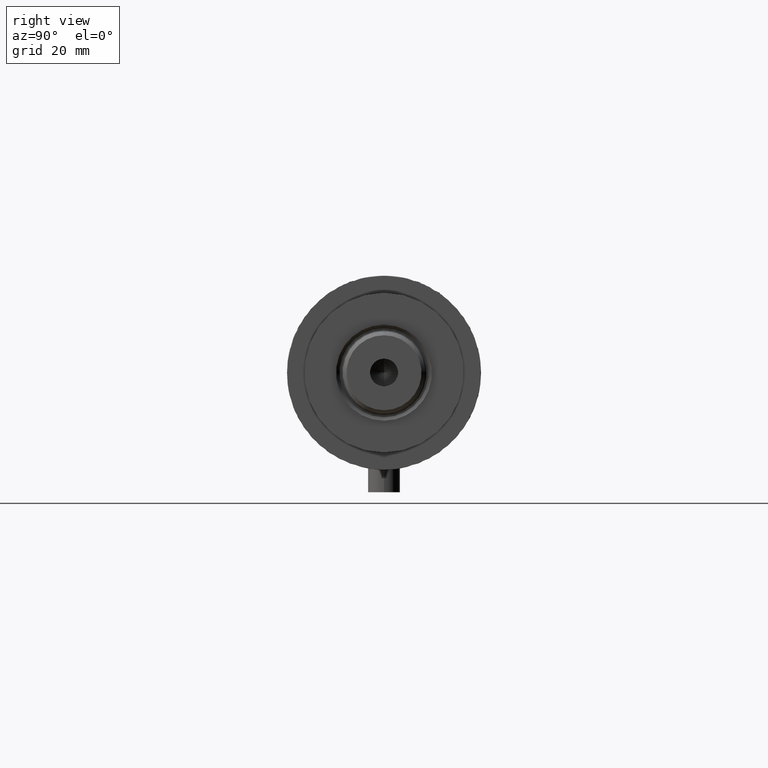
[diagram: clean part render]
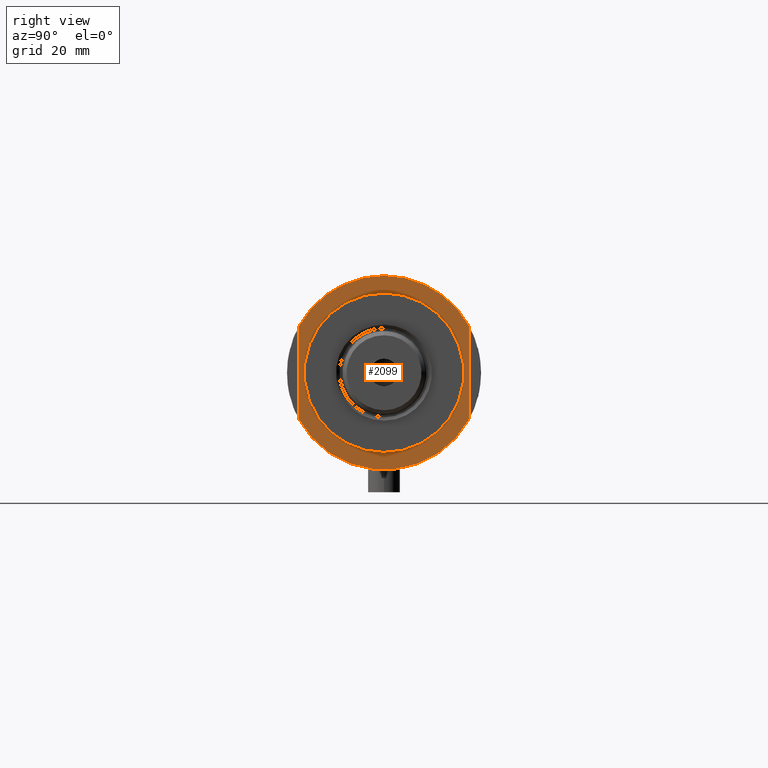
[diagram: same view with one face highlighted and labeled with its STEP entity id]
A machine part, right view. The second image highlights one B-rep face of the part: STEP entity #2099.
In plain terms, the highlighted planar face has unit normal (1, 0, -0).
Its self-contained STEP definition (entity closure, byte-faithful):
#1 = DIRECTION ( 'NONE',  ( -0.000000000000000000, -0.000000000000000000, -1.000000000000000000 ) ) ;
#22 = DIRECTION ( 'NONE',  ( 0.000000000000000000, 0.000000000000000000, 1.000000000000000000 ) ) ;
#241 = EDGE_CURVE ( 'NONE', #657, #3752, #2668, .T. ) ;
#356 = VERTEX_POINT ( 'NONE', #2266 ) ;
#358 = AXIS2_PLACEMENT_3D ( 'NONE', #615, #984, #3339 ) ;
#468 = CARTESIAN_POINT ( 'NONE',  ( -17.55704986607943141, -32.00000000000000000, 25.19999999999999929 ) ) ;
#511 = CIRCLE ( 'NONE', #875, 36.50000000000000000 ) ;
#517 = AXIS2_PLACEMENT_3D ( 'NONE', #2151, #22, #3534 ) ;
#557 = ORIENTED_EDGE ( 'NONE', *, *, #241, .T. ) ;
#615 = CARTESIAN_POINT ( 'NONE',  ( 0.000000000000000000, 0.000000000000000000, 25.19999999999999929 ) ) ;
#626 = ORIENTED_EDGE ( 'NONE', *, *, #687, .F. ) ;
#629 = DIRECTION ( 'NONE',  ( 1.000000000000000000, 0.000000000000000000, 0.000000000000000000 ) ) ;
#636 = CARTESIAN_POINT ( 'NONE',  ( 17.55704986607943496, 32.00000000000000000, 25.19999999999999929 ) ) ;
#657 = VERTEX_POINT ( 'NONE', #4245 ) ;
#680 = EDGE_CURVE ( 'NONE', #2399, #3837, #1861, .T. ) ;
#687 = EDGE_CURVE ( 'NONE', #356, #1887, #1133, .T. ) ;
#875 = AXIS2_PLACEMENT_3D ( 'NONE', #4435, #2322, #1337 ) ;
#934 = ORIENTED_EDGE ( 'NONE', *, *, #680, .F. ) ;
#984 = DIRECTION ( 'NONE',  ( 0.000000000000000000, 0.000000000000000000, 1.000000000000000000 ) ) ;
#1130 = ORIENTED_EDGE ( 'NONE', *, *, #2927, .T. ) ;
#1133 = LINE ( 'NONE', #468, #4409 ) ;
#1152 = DIRECTION ( 'NONE',  ( 1.000000000000000000, 0.000000000000000000, 0.000000000000000000 ) ) ;
#1293 = CARTESIAN_POINT ( 'NONE',  ( 0.000000000000000000, 0.000000000000000000, 25.19999999999999929 ) ) ;
#1320 = CIRCLE ( 'NONE', #3713, 30.00000000000000355 ) ;
#1337 = DIRECTION ( 'NONE',  ( 1.000000000000000000, 0.000000000000000000, 0.000000000000000000 ) ) ;
#1386 = EDGE_CURVE ( 'NONE', #2701, #1887, #2969, .T. ) ;
#1477 = CARTESIAN_POINT ( 'NONE',  ( -17.55704986607943496, -32.00000000000000000, 25.19999999999999929 ) ) ;
#1723 = CARTESIAN_POINT ( 'NONE',  ( 0.000000000000000000, 0.000000000000000000, 25.19999999999999929 ) ) ;
#1756 = CIRCLE ( 'NONE', #517, 36.50000000000000000 ) ;
#1849 = DIRECTION ( 'NONE',  ( 1.000000000000000000, 0.000000000000000000, 0.000000000000000000 ) ) ;
#1861 = LINE ( 'NONE', #2559, #3323 ) ;
#1887 = VERTEX_POINT ( 'NONE', #1477 ) ;
#2083 = ORIENTED_EDGE ( 'NONE', *, *, #1386, .T. ) ;
#2099 = ADVANCED_FACE ( 'NONE', ( #3042, #2680 ), #3665, .T. ) ;
#2151 = CARTESIAN_POINT ( 'NONE',  ( 0.000000000000000000, 0.000000000000000000, 25.19999999999999929 ) ) ;
#2266 = CARTESIAN_POINT ( 'NONE',  ( 17.55704986607943496, -32.00000000000000000, 25.19999999999999929 ) ) ;
#2322 = DIRECTION ( 'NONE',  ( 0.000000000000000000, 0.000000000000000000, 1.000000000000000000 ) ) ;
#2399 = VERTEX_POINT ( 'NONE', #3541 ) ;
#2414 = CARTESIAN_POINT ( 'NONE',  ( -36.50000000000000000, 0.000000000000000000, 25.19999999999999929 ) ) ;
#2516 = DIRECTION ( 'NONE',  ( -0.000000000000000000, -0.000000000000000000, -1.000000000000000000 ) ) ;
#2529 = DIRECTION ( 'NONE',  ( -1.000000000000000000, -0.000000000000000000, -0.000000000000000000 ) ) ;
#2546 = ORIENTED_EDGE ( 'NONE', *, *, #3125, .T. ) ;
#2559 = CARTESIAN_POINT ( 'NONE',  ( -17.55704986607943141, 32.00000000000000000, 25.19999999999999929 ) ) ;
#2631 = EDGE_LOOP ( 'NONE', ( #626, #2546, #934, #2715, #2083 ) ) ;
#2668 = CIRCLE ( 'NONE', #2888, 30.00000000000000355 ) ;
#2680 = FACE_OUTER_BOUND ( 'NONE', #2631, .T. ) ;
#2701 = VERTEX_POINT ( 'NONE', #2414 ) ;
#2715 = ORIENTED_EDGE ( 'NONE', *, *, #3907, .T. ) ;
#2888 = AXIS2_PLACEMENT_3D ( 'NONE', #1723, #1, #629 ) ;
#2927 = EDGE_CURVE ( 'NONE', #3752, #657, #1320, .T. ) ;
#2968 = CARTESIAN_POINT ( 'NONE',  ( 0.000000000000000000, 0.000000000000000000, 25.19999999999999929 ) ) ;
#2969 = CIRCLE ( 'NONE', #3396, 36.50000000000000000 ) ;
#3042 = FACE_BOUND ( 'NONE', #3827, .T. ) ;
#3080 = DIRECTION ( 'NONE',  ( 1.000000000000000000, 0.000000000000000000, 0.000000000000000000 ) ) ;
#3125 = EDGE_CURVE ( 'NONE', #356, #3837, #1756, .T. ) ;
#3323 = VECTOR ( 'NONE', #1152, 1000.000000000000000 ) ;
#3339 = DIRECTION ( 'NONE',  ( 1.000000000000000000, 0.000000000000000000, -0.000000000000000000 ) ) ;
#3396 = AXIS2_PLACEMENT_3D ( 'NONE', #1293, #4126, #3080 ) ;
#3534 = DIRECTION ( 'NONE',  ( 1.000000000000000000, 0.000000000000000000, 0.000000000000000000 ) ) ;
#3541 = CARTESIAN_POINT ( 'NONE',  ( -17.55704986607943496, 32.00000000000000000, 25.19999999999999929 ) ) ;
#3665 = PLANE ( 'NONE',  #358 ) ;
#3713 = AXIS2_PLACEMENT_3D ( 'NONE', #2968, #2516, #1849 ) ;
#3752 = VERTEX_POINT ( 'NONE', #3927 ) ;
#3827 = EDGE_LOOP ( 'NONE', ( #557, #1130 ) ) ;
#3837 = VERTEX_POINT ( 'NONE', #636 ) ;
#3907 = EDGE_CURVE ( 'NONE', #2399, #2701, #511, .T. ) ;
#3927 = CARTESIAN_POINT ( 'NONE',  ( -30.00000000000000355, 3.673940397442059178E-15, 25.19999999999999929 ) ) ;
#4126 = DIRECTION ( 'NONE',  ( 0.000000000000000000, 0.000000000000000000, 1.000000000000000000 ) ) ;
#4245 = CARTESIAN_POINT ( 'NONE',  ( 30.00000000000000355, 0.000000000000000000, 25.19999999999999929 ) ) ;
#4409 = VECTOR ( 'NONE', #2529, 1000.000000000000000 ) ;
#4435 = CARTESIAN_POINT ( 'NONE',  ( 0.000000000000000000, 0.000000000000000000, 25.19999999999999929 ) ) ;